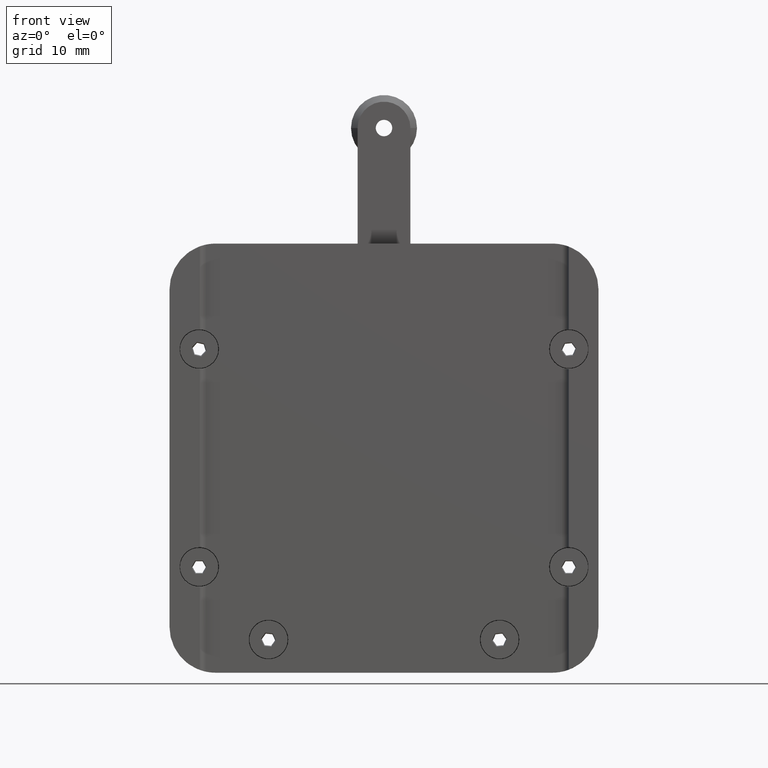
[diagram: clean part render]
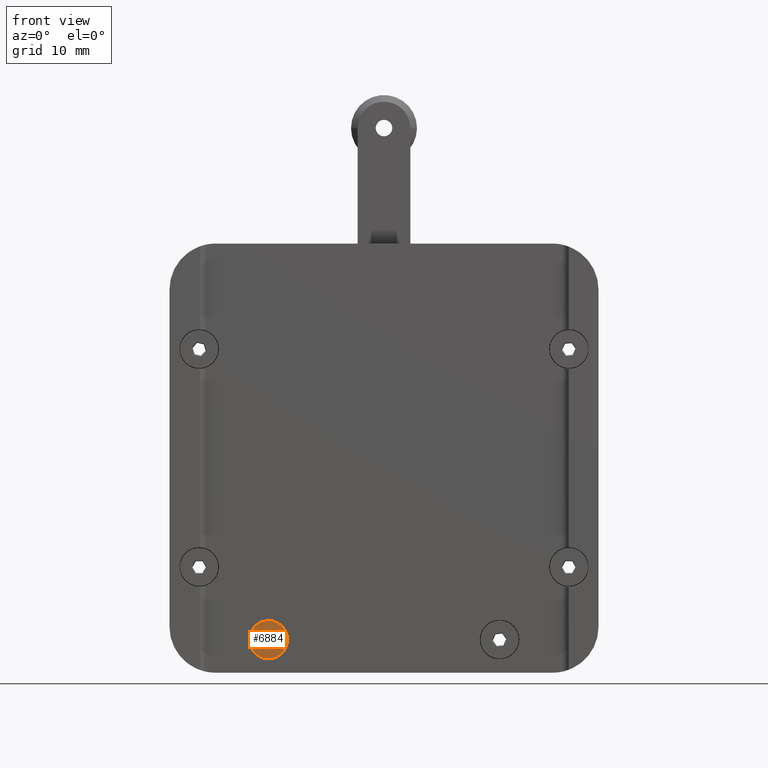
[diagram: same view with one face highlighted and labeled with its STEP entity id]
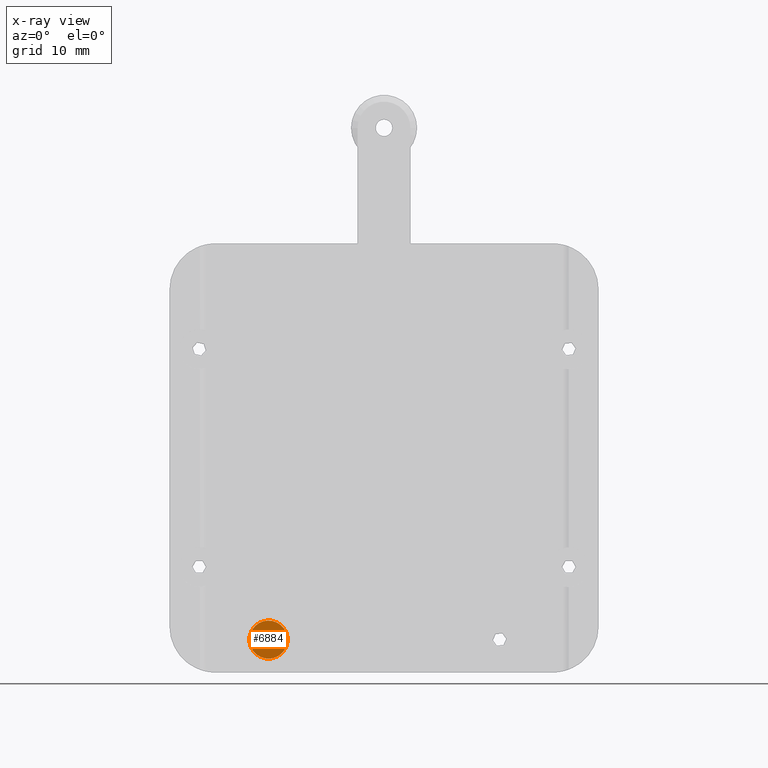
[diagram: x-ray of the same camera — body ghosted, the highlighted face saturated]
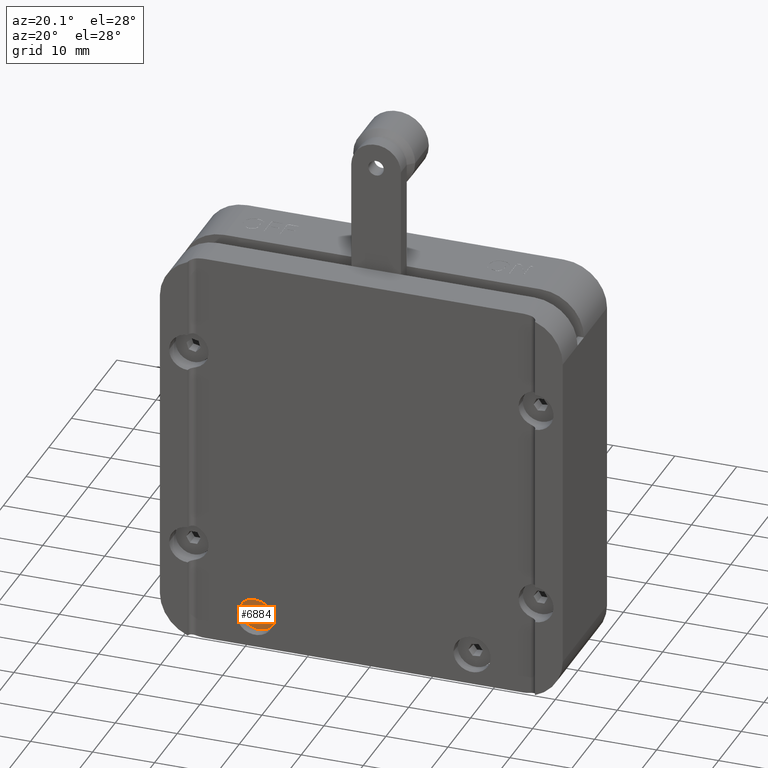
[diagram: same view with one face highlighted and labeled with its STEP entity id]
A machine part, front view. The second image highlights one B-rep face of the part: STEP entity #6884.
The next image is the same camera in x-ray: the body ghosted, the highlighted face saturated — about 0% of this face is hidden behind the body in this view.
A second angle (auxiliary view) of the same face is appended — the face is thin or edge-on in the first view.
In plain terms, the highlighted planar face has unit normal (0, -1, 0).
Its self-contained STEP definition (entity closure, byte-faithful):
#240 = EDGE_CURVE ( 'NONE', #5143, #1401, #4801, .T. ) ;
#275 = LINE ( 'NONE', #1757, #6814 ) ;
#503 = CARTESIAN_POINT ( 'NONE',  ( -17.50000000000000000, -0.9349999999999909500, -27.49999999999996800 ) ) ;
#509 = VERTEX_POINT ( 'NONE', #1461 ) ;
#522 = ORIENTED_EDGE ( 'NONE', *, *, #4732, .F. ) ;
#792 = CARTESIAN_POINT ( 'NONE',  ( -20.37763480959793200, -0.9349999999999909500, -27.23294588078360300 ) ) ;
#1011 = DIRECTION ( 'NONE',  ( -0.9957213874041195300, -0.0000000000000000000, 0.09240626962503850600 ) ) ;
#1062 = AXIS2_PLACEMENT_3D ( 'NONE', #3519, #2926, #3545 ) ;
#1082 = DIRECTION ( 'NONE',  ( 0.9957213874041195300, 0.0000000000000000000, -0.09240626962503850600 ) ) ;
#1221 = FACE_BOUND ( 'NONE', #4978, .T. ) ;
#1270 = CARTESIAN_POINT ( 'NONE',  ( -17.50000000000000000, -0.9349999999999909500, -27.49999999999996800 ) ) ;
#1401 = VERTEX_POINT ( 'NONE', #4229 ) ;
#1422 = VECTOR ( 'NONE', #1082, 1000.000000000000000 ) ;
#1461 = CARTESIAN_POINT ( 'NONE',  ( -18.64976002211129100, -0.9349999999999899500, -27.39329843071432400 ) ) ;
#1632 = CARTESIAN_POINT ( 'NONE',  ( -14.62236519040207000, -0.9349999999999909500, -27.76705411921633300 ) ) ;
#1634 = CARTESIAN_POINT ( 'NONE',  ( -16.83271371931932200, -0.9349999999999909500, -26.55762939723867400 ) ) ;
#1757 = CARTESIAN_POINT ( 'NONE',  ( -17.01752625856941100, -0.9349999999999909500, -28.54907217204691200 ) ) ;
#1962 = DIRECTION ( 'NONE',  ( 0.0000000000000000000, -1.000000000000000000, 0.0000000000000000000 ) ) ;
#2346 = EDGE_CURVE ( 'NONE', #1401, #2769, #275, .T. ) ;
#2426 = ORIENTED_EDGE ( 'NONE', *, *, #2346, .F. ) ;
#2442 = DIRECTION ( 'NONE',  ( 0.4178345167378224000, 0.0000000000000000000, -0.9085231513959731700 ) ) ;
#2540 = EDGE_CURVE ( 'NONE', #2983, #4915, #4164, .T. ) ;
#2576 = CARTESIAN_POINT ( 'NONE',  ( -16.83271371931932200, -0.9349999999999909500, -26.55762939723867400 ) ) ;
#2769 = VERTEX_POINT ( 'NONE', #4879 ) ;
#2926 = DIRECTION ( 'NONE',  ( 0.0000000000000000000, -1.000000000000000000, 0.0000000000000000000 ) ) ;
#2983 = VERTEX_POINT ( 'NONE', #792 ) ;
#3078 = EDGE_LOOP ( 'NONE', ( #5913, #6358 ) ) ;
#3092 = LINE ( 'NONE', #3247, #6258 ) ;
#3247 = CARTESIAN_POINT ( 'NONE',  ( -18.64976002211129100, -0.9349999999999899500, -27.39329843071432400 ) ) ;
#3519 = CARTESIAN_POINT ( 'NONE',  ( -17.50000000000000000, -0.9349999999999909500, -27.49999999999996800 ) ) ;
#3545 = DIRECTION ( 'NONE',  ( 0.9957213874041196400, 0.0000000000000000000, -0.09240626962503896400 ) ) ;
#3733 = DIRECTION ( 'NONE',  ( -0.4178345167378224000, 0.0000000000000000000, 0.9085231513959731700 ) ) ;
#3764 = PLANE ( 'NONE',  #6757 ) ;
#3845 = DIRECTION ( 'NONE',  ( 0.9957213874041195300, 0.0000000000000000000, -0.09240626962503850600 ) ) ;
#4139 = EDGE_CURVE ( 'NONE', #2769, #7862, #5951, .T. ) ;
#4164 = CIRCLE ( 'NONE', #1062, 2.890000000000027200 ) ;
#4228 = DIRECTION ( 'NONE',  ( 0.5778868706662972900, 0.0000000000000000000, 0.8161168817709348900 ) ) ;
#4229 = CARTESIAN_POINT ( 'NONE',  ( -17.01752625856941100, -0.9349999999999909500, -28.54907217204691200 ) ) ;
#4499 = CARTESIAN_POINT ( 'NONE',  ( -17.98247374143059900, -0.9349999999999909500, -26.45092782795302400 ) ) ;
#4509 = FACE_OUTER_BOUND ( 'NONE', #3078, .T. ) ;
#4537 = LINE ( 'NONE', #1634, #5811 ) ;
#4671 = VECTOR ( 'NONE', #3733, 1000.000000000000000 ) ;
#4732 = EDGE_CURVE ( 'NONE', #6632, #509, #6356, .T. ) ;
#4801 = LINE ( 'NONE', #6028, #1422 ) ;
#4879 = CARTESIAN_POINT ( 'NONE',  ( -16.35023997788870900, -0.9349999999999909500, -27.60670156928562900 ) ) ;
#4915 = VERTEX_POINT ( 'NONE', #1632 ) ;
#4969 = CARTESIAN_POINT ( 'NONE',  ( -16.35023997788870900, -0.9349999999999909500, -27.60670156928562900 ) ) ;
#4978 = EDGE_LOOP ( 'NONE', ( #2426, #6781, #8156, #522, #7944, #6010 ) ) ;
#4983 = CIRCLE ( 'NONE', #6916, 2.890000000000027200 ) ;
#5143 = VERTEX_POINT ( 'NONE', #5732 ) ;
#5627 = DIRECTION ( 'NONE',  ( -0.5778868706662972900, -0.0000000000000000000, -0.8161168817709348900 ) ) ;
#5732 = CARTESIAN_POINT ( 'NONE',  ( -18.16728628068067800, -0.9349999999999909500, -28.44237060276126200 ) ) ;
#5811 = VECTOR ( 'NONE', #1011, 1000.000000000000000 ) ;
#5824 = EDGE_CURVE ( 'NONE', #7862, #6632, #4537, .T. ) ;
#5913 = ORIENTED_EDGE ( 'NONE', *, *, #7620, .T. ) ;
#5951 = LINE ( 'NONE', #4969, #4671 ) ;
#6010 = ORIENTED_EDGE ( 'NONE', *, *, #4139, .F. ) ;
#6028 = CARTESIAN_POINT ( 'NONE',  ( -18.16728628068067800, -0.9349999999999909500, -28.44237060276126200 ) ) ;
#6140 = VECTOR ( 'NONE', #5627, 1000.000000000000000 ) ;
#6258 = VECTOR ( 'NONE', #2442, 1000.000000000000000 ) ;
#6356 = LINE ( 'NONE', #7399, #6140 ) ;
#6358 = ORIENTED_EDGE ( 'NONE', *, *, #2540, .T. ) ;
#6632 = VERTEX_POINT ( 'NONE', #4499 ) ;
#6757 = AXIS2_PLACEMENT_3D ( 'NONE', #1270, #1962, #3845 ) ;
#6781 = ORIENTED_EDGE ( 'NONE', *, *, #240, .F. ) ;
#6814 = VECTOR ( 'NONE', #4228, 1000.000000000000000 ) ;
#6884 = ADVANCED_FACE ( 'NONE', ( #1221, #4509 ), #3764, .T. ) ;
#6916 = AXIS2_PLACEMENT_3D ( 'NONE', #503, #7118, #7736 ) ;
#7118 = DIRECTION ( 'NONE',  ( 0.0000000000000000000, -1.000000000000000000, 0.0000000000000000000 ) ) ;
#7399 = CARTESIAN_POINT ( 'NONE',  ( -17.98247374143059900, -0.9349999999999909500, -26.45092782795302400 ) ) ;
#7502 = EDGE_CURVE ( 'NONE', #509, #5143, #3092, .T. ) ;
#7620 = EDGE_CURVE ( 'NONE', #4915, #2983, #4983, .T. ) ;
#7736 = DIRECTION ( 'NONE',  ( 0.9957213874041196400, 0.0000000000000000000, -0.09240626962503896400 ) ) ;
#7862 = VERTEX_POINT ( 'NONE', #2576 ) ;
#7944 = ORIENTED_EDGE ( 'NONE', *, *, #5824, .F. ) ;
#8156 = ORIENTED_EDGE ( 'NONE', *, *, #7502, .F. ) ;